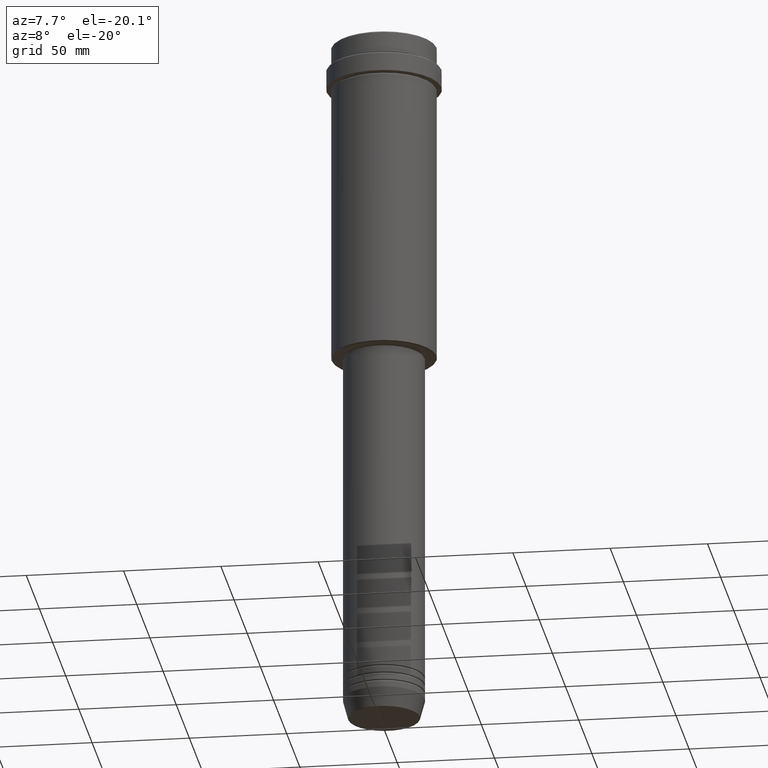
[diagram: clean part render]
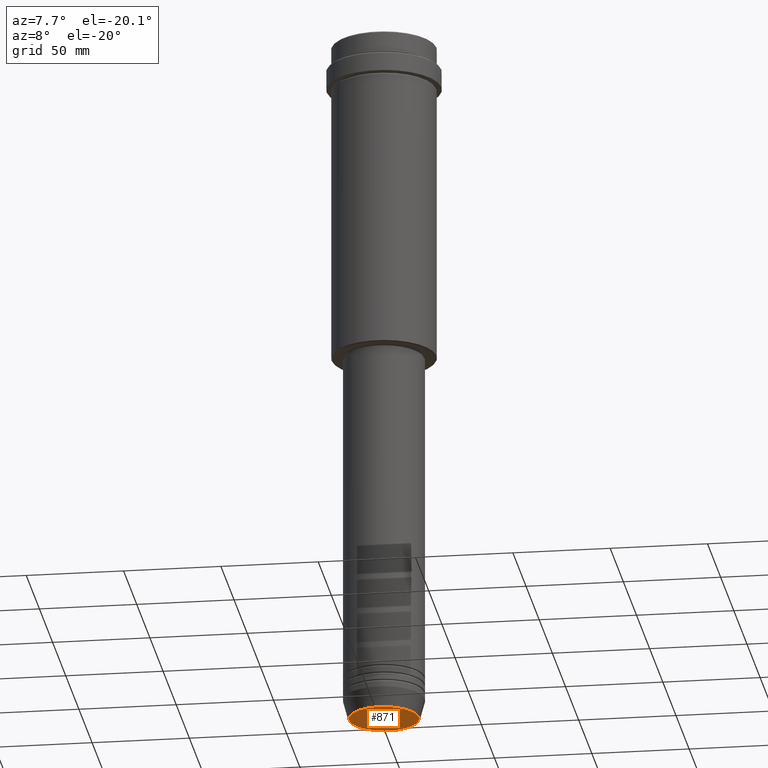
[diagram: same view with one face highlighted and labeled with its STEP entity id]
A machine part, auxiliary view. The second image highlights one B-rep face of the part: STEP entity #871.
In plain terms, the highlighted planar face has unit normal (0, -0, 1).
Its self-contained STEP definition (entity closure, byte-faithful):
#29 = CARTESIAN_POINT ( 'NONE',  ( 17.93684458169929030, 0.000000000000000000, -363.0000000000000568 ) ) ;
#35 = DIRECTION ( 'NONE',  ( 1.000000000000000000, 0.000000000000000000, 0.000000000000000000 ) ) ;
#63 = VERTEX_POINT ( 'NONE', #29 ) ;
#78 = CIRCLE ( 'NONE', #1186, 17.93684458169929030 ) ;
#141 = EDGE_LOOP ( 'NONE', ( #1033, #406 ) ) ;
#317 = CIRCLE ( 'NONE', #694, 17.93684458169929030 ) ;
#356 = EDGE_CURVE ( 'NONE', #1344, #63, #317, .T. ) ;
#369 = DIRECTION ( 'NONE',  ( 0.000000000000000000, 0.000000000000000000, -1.000000000000000000 ) ) ;
#406 = ORIENTED_EDGE ( 'NONE', *, *, #356, .T. ) ;
#462 = CARTESIAN_POINT ( 'NONE',  ( 0.000000000000000000, 0.000000000000000000, -363.0000000000000568 ) ) ;
#488 = DIRECTION ( 'NONE',  ( 0.000000000000000000, -0.000000000000000000, 1.000000000000000000 ) ) ;
#500 = DIRECTION ( 'NONE',  ( 0.000000000000000000, 0.000000000000000000, -1.000000000000000000 ) ) ;
#604 = CARTESIAN_POINT ( 'NONE',  ( 0.000000000000000000, 0.000000000000000000, -363.0000000000000568 ) ) ;
#694 = AXIS2_PLACEMENT_3D ( 'NONE', #604, #500, #1225 ) ;
#702 = FACE_OUTER_BOUND ( 'NONE', #141, .T. ) ;
#826 = EDGE_CURVE ( 'NONE', #63, #1344, #78, .T. ) ;
#871 = ADVANCED_FACE ( 'NONE', ( #702 ), #1010, .F. ) ;
#1010 = PLANE ( 'NONE',  #1402 ) ;
#1033 = ORIENTED_EDGE ( 'NONE', *, *, #826, .T. ) ;
#1118 = DIRECTION ( 'NONE',  ( 1.000000000000000000, 0.000000000000000000, 0.000000000000000000 ) ) ;
#1186 = AXIS2_PLACEMENT_3D ( 'NONE', #1240, #369, #35 ) ;
#1225 = DIRECTION ( 'NONE',  ( 1.000000000000000000, 0.000000000000000000, 0.000000000000000000 ) ) ;
#1240 = CARTESIAN_POINT ( 'NONE',  ( 0.000000000000000000, 0.000000000000000000, -363.0000000000000568 ) ) ;
#1327 = CARTESIAN_POINT ( 'NONE',  ( -17.93684458169929030, 2.226202879662625134E-15, -363.0000000000000568 ) ) ;
#1344 = VERTEX_POINT ( 'NONE', #1327 ) ;
#1402 = AXIS2_PLACEMENT_3D ( 'NONE', #462, #488, #1118 ) ;